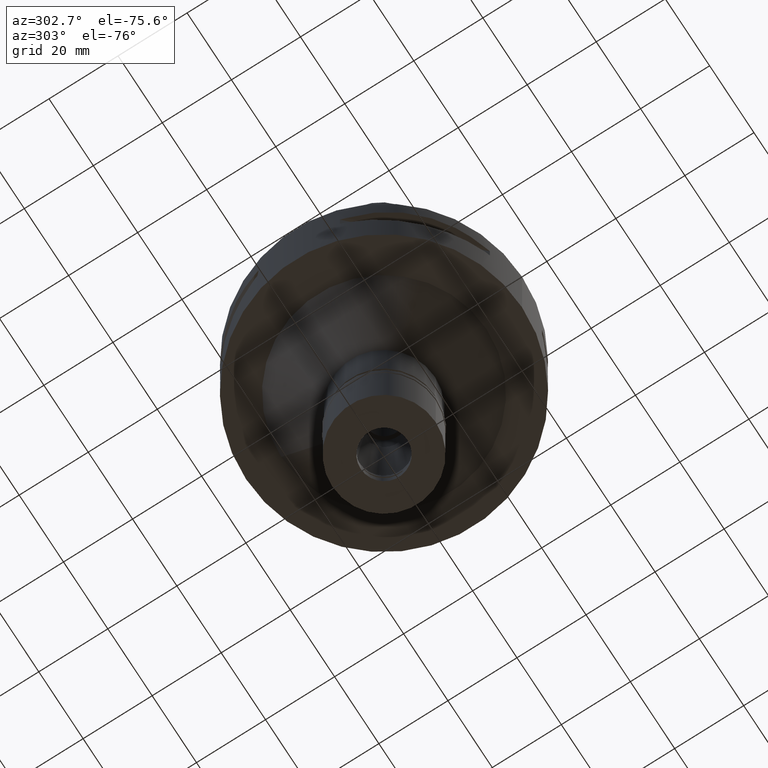
[diagram: clean part render]
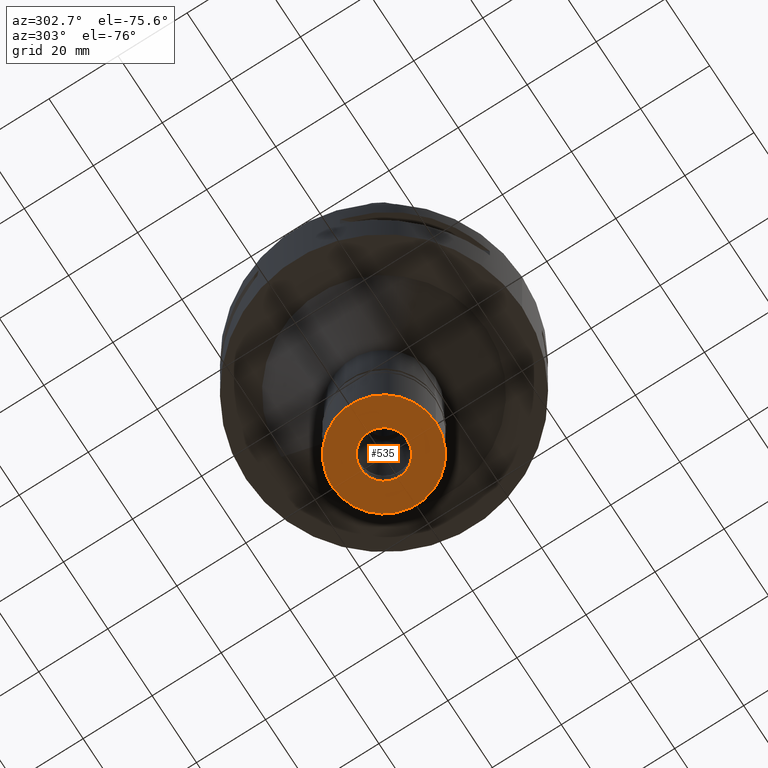
[diagram: same view with one face highlighted and labeled with its STEP entity id]
A machine part, auxiliary view. The second image highlights one B-rep face of the part: STEP entity #535.
In plain terms, the highlighted planar face has unit normal (0, 0, -1).
Its self-contained STEP definition (entity closure, byte-faithful):
#54 = EDGE_CURVE ( 'NONE', #4153, #1085, #784, .T. ) ;
#56 = CARTESIAN_POINT ( 'NONE',  ( 0.0000000000000000000, 15.00000000000000000, -23.80000000000000071 ) ) ;
#177 = CARTESIAN_POINT ( 'NONE',  ( 0.0000000000000000000, 6.750000000000000000, -23.80000000000000071 ) ) ;
#281 = AXIS2_PLACEMENT_3D ( 'NONE', #3126, #4668, #1205 ) ;
#445 = FACE_OUTER_BOUND ( 'NONE', #1867, .T. ) ;
#494 = ORIENTED_EDGE ( 'NONE', *, *, #644, .F. ) ;
#500 = CIRCLE ( 'NONE', #3347, 6.750000000000000000 ) ;
#535 = ADVANCED_FACE ( 'NONE', ( #445, #1328 ), #3250, .T. ) ;
#644 = EDGE_CURVE ( 'NONE', #3813, #649, #3054, .T. ) ;
#649 = VERTEX_POINT ( 'NONE', #177 ) ;
#659 = CARTESIAN_POINT ( 'NONE',  ( 0.0000000000000000000, 0.0000000000000000000, -23.80000000000000071 ) ) ;
#784 = CIRCLE ( 'NONE', #3773, 15.00000000000000000 ) ;
#858 = EDGE_CURVE ( 'NONE', #1085, #4153, #2577, .T. ) ;
#995 = DIRECTION ( 'NONE',  ( 0.0000000000000000000, 1.000000000000000000, 0.0000000000000000000 ) ) ;
#1085 = VERTEX_POINT ( 'NONE', #56 ) ;
#1122 = AXIS2_PLACEMENT_3D ( 'NONE', #3604, #3203, #4787 ) ;
#1205 = DIRECTION ( 'NONE',  ( 0.0000000000000000000, 1.000000000000000000, 0.0000000000000000000 ) ) ;
#1328 = FACE_BOUND ( 'NONE', #3415, .T. ) ;
#1774 = DIRECTION ( 'NONE',  ( 0.0000000000000000000, -1.000000000000000000, 0.0000000000000000000 ) ) ;
#1800 = DIRECTION ( 'NONE',  ( 0.0000000000000000000, 0.0000000000000000000, -1.000000000000000000 ) ) ;
#1867 = EDGE_LOOP ( 'NONE', ( #4272, #4931 ) ) ;
#2246 = DIRECTION ( 'NONE',  ( 0.0000000000000000000, 0.0000000000000000000, -1.000000000000000000 ) ) ;
#2577 = CIRCLE ( 'NONE', #281, 15.00000000000000000 ) ;
#2805 = AXIS2_PLACEMENT_3D ( 'NONE', #659, #2246, #1774 ) ;
#3054 = CIRCLE ( 'NONE', #2805, 6.750000000000000000 ) ;
#3126 = CARTESIAN_POINT ( 'NONE',  ( 0.0000000000000000000, 0.0000000000000000000, -23.80000000000000071 ) ) ;
#3203 = DIRECTION ( 'NONE',  ( 0.0000000000000000000, 0.0000000000000000000, -1.000000000000000000 ) ) ;
#3250 = PLANE ( 'NONE',  #1122 ) ;
#3347 = AXIS2_PLACEMENT_3D ( 'NONE', #4465, #1800, #995 ) ;
#3415 = EDGE_LOOP ( 'NONE', ( #4452, #494 ) ) ;
#3604 = CARTESIAN_POINT ( 'NONE',  ( 0.0000000000000000000, 0.0000000000000000000, -23.80000000000000071 ) ) ;
#3640 = CARTESIAN_POINT ( 'NONE',  ( 0.0000000000000000000, -6.750000000000000000, -23.80000000000000071 ) ) ;
#3773 = AXIS2_PLACEMENT_3D ( 'NONE', #4274, #3905, #5017 ) ;
#3813 = VERTEX_POINT ( 'NONE', #3640 ) ;
#3905 = DIRECTION ( 'NONE',  ( 0.0000000000000000000, 0.0000000000000000000, 1.000000000000000000 ) ) ;
#4153 = VERTEX_POINT ( 'NONE', #4859 ) ;
#4272 = ORIENTED_EDGE ( 'NONE', *, *, #858, .F. ) ;
#4274 = CARTESIAN_POINT ( 'NONE',  ( 0.0000000000000000000, 0.0000000000000000000, -23.80000000000000071 ) ) ;
#4452 = ORIENTED_EDGE ( 'NONE', *, *, #4477, .F. ) ;
#4465 = CARTESIAN_POINT ( 'NONE',  ( 0.0000000000000000000, 0.0000000000000000000, -23.80000000000000071 ) ) ;
#4477 = EDGE_CURVE ( 'NONE', #649, #3813, #500, .T. ) ;
#4668 = DIRECTION ( 'NONE',  ( 0.0000000000000000000, 0.0000000000000000000, 1.000000000000000000 ) ) ;
#4787 = DIRECTION ( 'NONE',  ( 0.0000000000000000000, -1.000000000000000000, 0.0000000000000000000 ) ) ;
#4859 = CARTESIAN_POINT ( 'NONE',  ( 0.0000000000000000000, -15.00000000000000000, -23.80000000000000071 ) ) ;
#4931 = ORIENTED_EDGE ( 'NONE', *, *, #54, .F. ) ;
#5017 = DIRECTION ( 'NONE',  ( 0.0000000000000000000, -1.000000000000000000, 0.0000000000000000000 ) ) ;